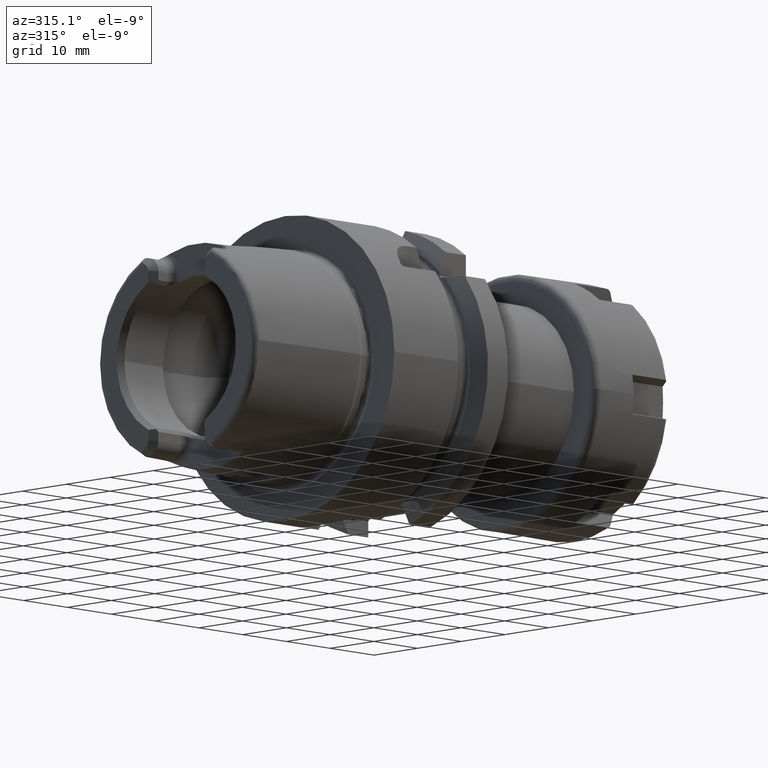
[diagram: clean part render]
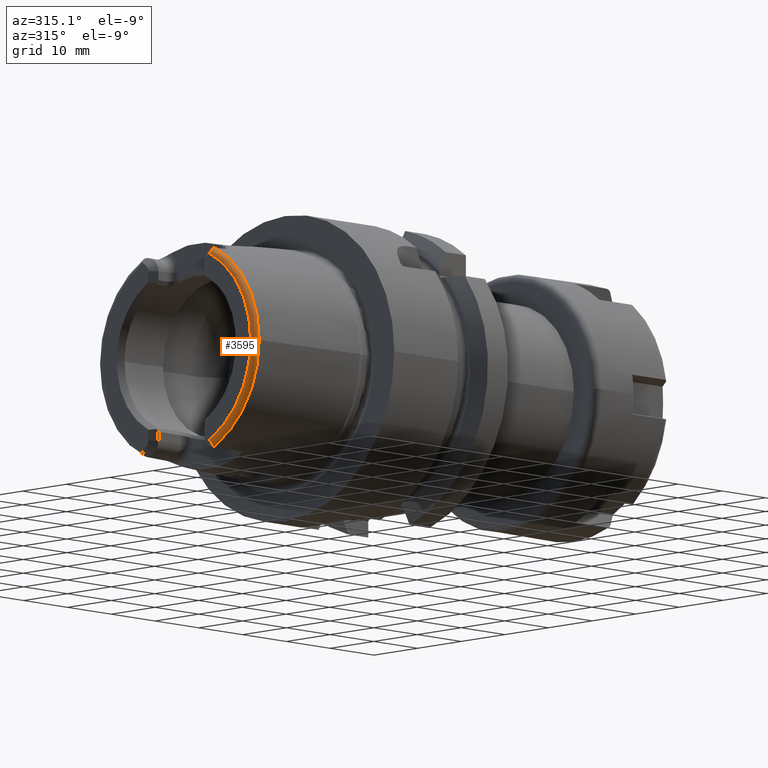
[diagram: same view with one face highlighted and labeled with its STEP entity id]
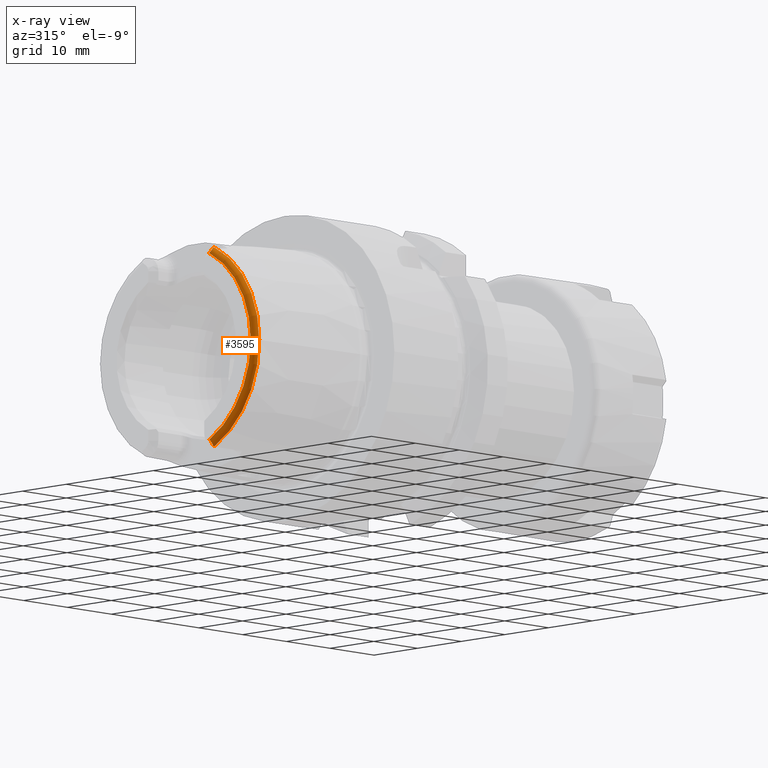
[diagram: x-ray of the same camera — body ghosted, the highlighted face saturated]
A machine part, auxiliary view. The second image highlights one B-rep face of the part: STEP entity #3595.
The next image is the same camera in x-ray: the body ghosted, the highlighted face saturated — about 0% of this face is hidden behind the body in this view.
In plain terms, the highlighted toroidal blend (fillet) surface has major radius 17.0564 mm and minor (blend) radius 1 mm.
Its self-contained STEP definition (entity closure, byte-faithful):
#349=CARTESIAN_POINT('',(-2.49E1,-7.544783891853E0,-1.529691173314E1));
#350=CARTESIAN_POINT('',(-2.49E1,-7.573571818077E0,-1.531653769016E1));
#351=CARTESIAN_POINT('',(-2.489728155480E1,-7.629153987391E0,
-1.535772050003E1));
#352=CARTESIAN_POINT('',(-2.488369366620E1,-7.707011470286E0,
-1.542724439023E1));
#353=CARTESIAN_POINT('',(-2.485976181664E1,-7.775213915386E0,
-1.550270509867E1));
#354=CARTESIAN_POINT('',(-2.482554894287E1,-7.831351740784E0,
-1.558238373959E1));
#355=CARTESIAN_POINT('',(-2.478051603101E1,-7.874904688229E0,
-1.566657798747E1));
#356=CARTESIAN_POINT('',(-2.472245852842E1,-7.904950492844E0,
-1.575732721672E1));
#357=CARTESIAN_POINT('',(-2.465012294207E1,-7.918165671235E0,
-1.585388274214E1));
#358=CARTESIAN_POINT('',(-2.456348848049E1,-7.911565558215E0,
-1.595423495364E1));
#359=CARTESIAN_POINT('',(-2.445933901158E1,-7.881065558196E0,
-1.605949162240E1));
#360=CARTESIAN_POINT('',(-2.434031300018E1,-7.823250379899E0,
-1.616413112254E1));
#361=CARTESIAN_POINT('',(-2.425582567505E1,-7.768067430635E0,
-1.622876371049E1));
#362=CARTESIAN_POINT('',(-2.421192926899E1,-7.735957706029E0,-1.626E1));
#364=CARTESIAN_POINT('',(-2.49E1,0.E0,0.E0));
#365=DIRECTION('',(-1.E0,0.E0,0.E0));
#366=DIRECTION('',(0.E0,-4.423444250631E-1,-8.968452539962E-1));
#367=AXIS2_PLACEMENT_3D('',#364,#365,#366);
#369=CARTESIAN_POINT('',(-2.421192926899E1,-7.735957706029E0,1.626E1));
#370=CARTESIAN_POINT('',(-2.425583231226E1,-7.768072285681E0,1.622875898751E1));
#371=CARTESIAN_POINT('',(-2.434033184818E1,-7.823262199091E0,1.616411636888E1));
#372=CARTESIAN_POINT('',(-2.445937366981E1,-7.881080235028E0,1.605945968213E1));
#373=CARTESIAN_POINT('',(-2.456353415230E1,-7.911575364322E0,1.595418636329E1));
#374=CARTESIAN_POINT('',(-2.465017924519E1,-7.918164814453E0,1.585381401561E1));
#375=CARTESIAN_POINT('',(-2.472252391503E1,-7.904930308012E0,1.575723431988E1));
#376=CARTESIAN_POINT('',(-2.478058070349E1,-7.874859204865E0,1.566646870783E1));
#377=CARTESIAN_POINT('',(-2.482560200513E1,-7.831284304746E0,1.558227354547E1));
#378=CARTESIAN_POINT('',(-2.485979561893E1,-7.775138335981E0,1.550261266279E1));
#379=CARTESIAN_POINT('',(-2.488370779609E1,-7.706948429724E0,1.542718431171E1));
#380=CARTESIAN_POINT('',(-2.489728334263E1,-7.629123221142E0,1.535769736158E1));
#381=CARTESIAN_POINT('',(-2.49E1,-7.573561201560E0,1.531653045242E1));
#382=CARTESIAN_POINT('',(-2.49E1,-7.544783891853E0,1.529691173314E1));
#384=CARTESIAN_POINT('',(-2.395003724237E1,-7.848512546022E0,1.626E1));
#385=CARTESIAN_POINT('',(-2.398205200909E1,-7.844822764222E0,1.626E1));
#386=CARTESIAN_POINT('',(-2.404404093899E1,-7.830728571291E0,1.626E1));
#387=CARTESIAN_POINT('',(-2.413339489162E1,-7.790719671913E0,1.626E1));
#388=CARTESIAN_POINT('',(-2.418634805448E1,-7.755506493033E0,1.626E1));
#389=CARTESIAN_POINT('',(-2.421192926899E1,-7.735957706029E0,1.626E1));
#391=CARTESIAN_POINT('',(-2.395003724237E1,0.E0,0.E0));
#392=DIRECTION('',(1.E0,0.E0,0.E0));
#393=DIRECTION('',(0.E0,-4.346977410045E-1,9.005764120637E-1));
#394=AXIS2_PLACEMENT_3D('',#391,#392,#393);
#396=CARTESIAN_POINT('',(-2.395003724237E1,0.E0,0.E0));
#397=DIRECTION('',(-1.E0,0.E0,0.E0));
#398=DIRECTION('',(0.E0,-4.346977410045E-1,-9.005764120637E-1));
#399=AXIS2_PLACEMENT_3D('',#396,#397,#398);
#401=CARTESIAN_POINT('',(-2.421192926899E1,-7.735957706029E0,-1.626E1));
#402=CARTESIAN_POINT('',(-2.418327713361E1,-7.757853245487E0,-1.626E1));
#403=CARTESIAN_POINT('',(-2.412554393897E1,-7.795219670859E0,-1.626E1));
#404=CARTESIAN_POINT('',(-2.403673963473E1,-7.832849293659E0,-1.626E1));
#405=CARTESIAN_POINT('',(-2.397885131924E1,-7.845191651719E0,-1.626E1));
#406=CARTESIAN_POINT('',(-2.395003724237E1,-7.848512546022E0,-1.626E1));
#2779=CARTESIAN_POINT('',(-2.395003724237E1,-1.805510313416E1,0.E0));
#2780=VERTEX_POINT('',#2779);
#2795=CARTESIAN_POINT('',(-2.395003724237E1,-7.848512546022E0,1.626E1));
#2796=VERTEX_POINT('',#2795);
#2799=CARTESIAN_POINT('',(-2.395003724237E1,-7.848512546022E0,-1.626E1));
#2800=VERTEX_POINT('',#2799);
#2900=CARTESIAN_POINT('',(-2.49E1,-7.544783891853E0,1.529691173314E1));
#2901=VERTEX_POINT('',#2900);
#2902=VERTEX_POINT('',#369);
#2932=CARTESIAN_POINT('',(-2.49E1,-7.544783891853E0,-1.529691173314E1));
#2933=VERTEX_POINT('',#2932);
#2934=VERTEX_POINT('',#362);
#3578=CARTESIAN_POINT('',(-2.39E1,0.E0,0.E0));
#3579=DIRECTION('',(1.E0,0.E0,0.E0));
#3580=DIRECTION('',(0.E0,-1.E0,0.E0));
#3581=AXIS2_PLACEMENT_3D('',#3578,#3579,#3580);
#3582=TOROIDAL_SURFACE('',#3581,1.705635578153E1,1.E0);
#3584=ORIENTED_EDGE('',*,*,#3583,.F.);
#3585=ORIENTED_EDGE('',*,*,#3371,.T.);
#3586=ORIENTED_EDGE('',*,*,#3328,.F.);
#3587=ORIENTED_EDGE('',*,*,#3311,.F.);
#3588=ORIENTED_EDGE('',*,*,#3288,.T.);
#3590=ORIENTED_EDGE('',*,*,#3589,.F.);
#3592=ORIENTED_EDGE('',*,*,#3591,.F.);
#3593=EDGE_LOOP('',(#3584,#3585,#3586,#3587,#3588,#3590,#3592));
#3594=FACE_OUTER_BOUND('',#3593,.F.);
#3595=ADVANCED_FACE('',(#3594),#3582,.T.);
#363=B_SPLINE_CURVE_WITH_KNOTS('',3,(#349,#350,#351,#352,#353,#354,#355,#356,
#357,#358,#359,#360,#361,#362),.UNSPECIFIED.,.F.,.F.,(4,1,1,1,1,1,1,1,1,1,1,4),(
0.E0,9.090909090909E-2,1.818181818182E-1,2.727272727273E-1,3.636363636364E-1,
4.545454545455E-1,5.454545454545E-1,6.363636363636E-1,7.272727272727E-1,
8.181818181818E-1,9.090909090909E-1,1.E0),.UNSPECIFIED.);
#368=CIRCLE('',#367,1.705635578153E1);
#383=B_SPLINE_CURVE_WITH_KNOTS('',3,(#369,#370,#371,#372,#373,#374,#375,#376,
#377,#378,#379,#380,#381,#382),.UNSPECIFIED.,.F.,.F.,(4,1,1,1,1,1,1,1,1,1,1,4),(
0.E0,9.090909090909E-2,1.818181818182E-1,2.727272727273E-1,3.636363636364E-1,
4.545454545455E-1,5.454545454545E-1,6.363636363636E-1,7.272727272727E-1,
8.181818181818E-1,9.090909090909E-1,1.E0),.UNSPECIFIED.);
#390=B_SPLINE_CURVE_WITH_KNOTS('',3,(#384,#385,#386,#387,#388,#389),
.UNSPECIFIED.,.F.,.F.,(4,1,1,4),(0.E0,3.333333333333E-1,6.666666666667E-1,1.E0),
.UNSPECIFIED.);
#395=CIRCLE('',#394,1.805510313416E1);
#400=CIRCLE('',#399,1.805510313416E1);
#407=B_SPLINE_CURVE_WITH_KNOTS('',3,(#401,#402,#403,#404,#405,#406),
.UNSPECIFIED.,.F.,.F.,(4,1,1,4),(0.E0,3.333333333333E-1,6.666666666667E-1,1.E0),
.UNSPECIFIED.);
#3288=EDGE_CURVE('',#2796,#2780,#395,.T.);
#3311=EDGE_CURVE('',#2796,#2902,#390,.T.);
#3328=EDGE_CURVE('',#2902,#2901,#383,.T.);
#3371=EDGE_CURVE('',#2933,#2901,#368,.T.);
#3583=EDGE_CURVE('',#2933,#2934,#363,.T.);
#3589=EDGE_CURVE('',#2800,#2780,#400,.T.);
#3591=EDGE_CURVE('',#2934,#2800,#407,.T.);